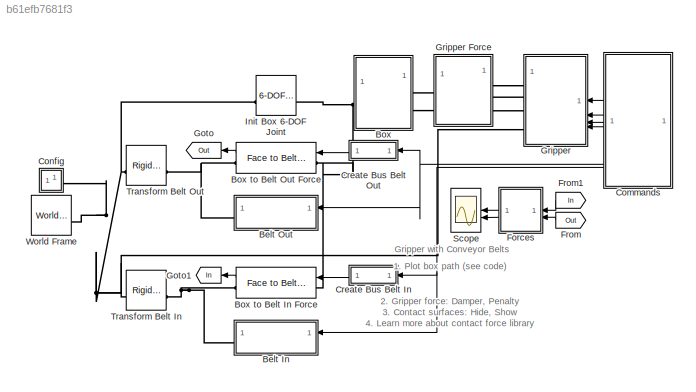
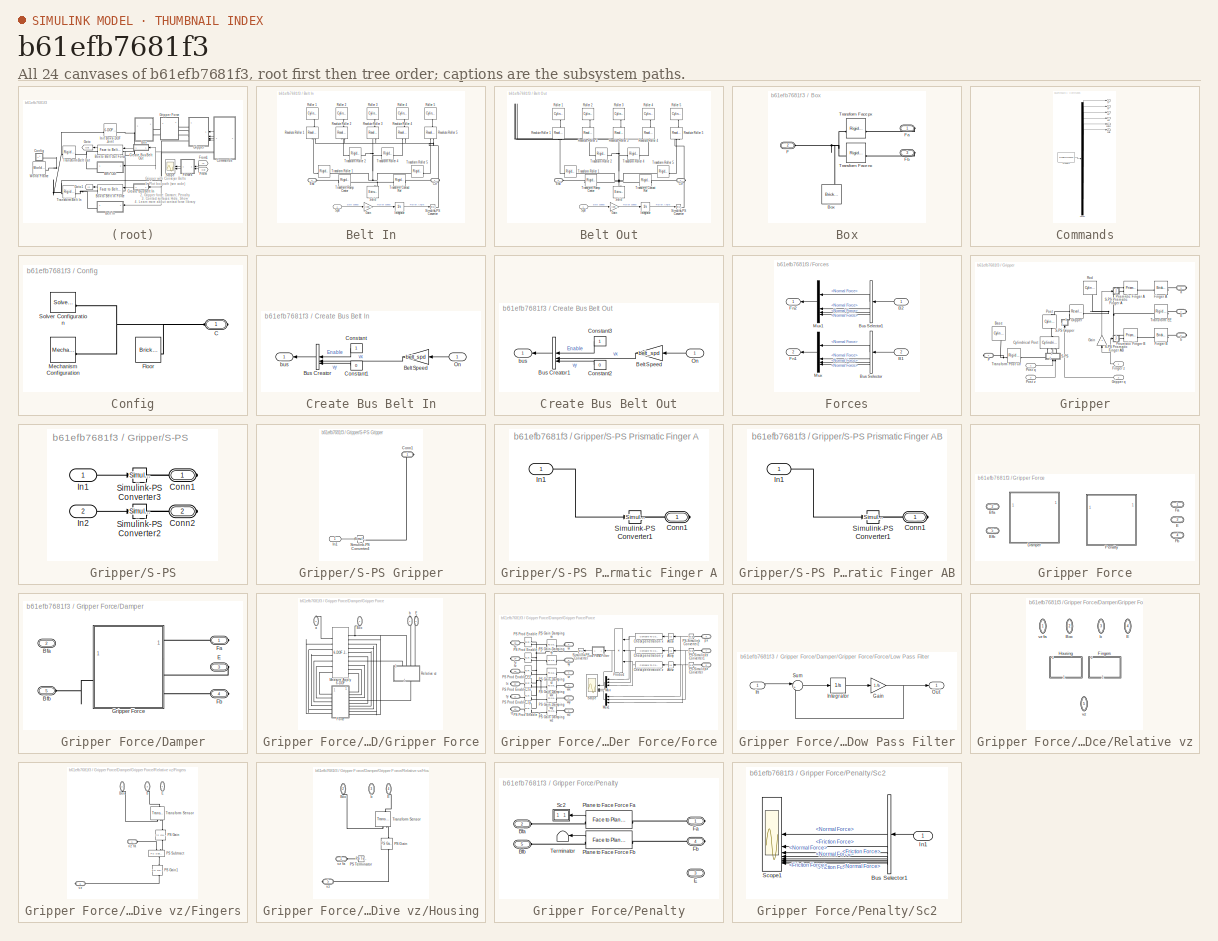
[diagram: thumbnail index - all 24 canvases of the model, root first then tree order]
MODEL slx_b61efb7681f3
KIND model
CONFIG AbsTol = 1e-4
CONFIG EnableMultiTasking = off
CONFIG FixedStep = auto
CONFIG MaxStep = 0.01
CONFIG MinStep = auto
CONFIG RelTol = 1e-3
CONFIG SampleTimeConstraint = Unconstrained
CONFIG SolverName = ode15s
CONFIG StartFcn = tic;
CONFIG StartTime = 0.0
CONFIG StopFcn = Elapsed_Sim_Time = toc;\ndisp(['Elapsed Sim Time = ' num2str(Elapsed_Sim_Time)]);\n
CONFIG StopTime = 30
WORKSPACE source: MATLAB code (in-file)
WORKSPACE floor_l = 1.0900  (= 1.09)
WORKSPACE floor_d = 0.0100  (= 0.01)
WORKSPACE belt_w = 0.1000  (= 0.1)
WORKSPACE belt_l = 0.4000  (= 0.4)
WORKSPACE belt_h = 0.0200  (= 0.02)
WORKSPACE belt_in_offset = [0    0.5050 0.0500]
WORKSPACE belt_out_offset = [-0.5050 0 0.0500]
WORKSPACE belt_spd = 0.1
WORKSPACE cube_d = 0.0600  (= 0.06)
WORKSPACE cube_con_rsph = 0.003
WORKSPACE cube_con_k = 1000000
WORKSPACE cube_con_b = 10000
WORKSPACE finger_con_x = 0.01
WORKSPACE finger_con_y = 0.01
WORKSPACE finger_con_z = 5e-4  (= 0.0005)
WORKSPACE finger_con_rsph = 5.0000e-04  (= 0.0005)
WORKSPACE finger_con_muk = 0.05
WORKSPACE finger_con_mus = 0.07
WORKSPACE finger_con_vth = 1e-3  (= 0.001)
WORKSPACE finger_l = 0.4
WORKSPACE finger_w = 0.03
WORKSPACE finger_t = 0.01
BLOCK [SubSystem] Belt In
  Tag = CustomStyle
BLOCK [PMIOPort] Belt In/Ctr
  Side = Right
BLOCK [PMIOPort] Belt In/End
  Port = 2
  Side = Left
BLOCK [Gain] Belt In/Gain
  Gain = 1/(belt_d/2*0.8)
BLOCK [Integrator] Belt In/Integrator
  NameLocation = top
BLOCK [Reference] Belt In/Revolute Roller 1  REF=sm_lib/Joints/Revolute Joint
  NameLocation = right
  SourceBlock = sm_lib/Joints/Revolute Joint
  SourceType = Revolute Joint
BLOCK [Reference] Belt In/Revolute Roller 2  REF=sm_lib/Joints/Revolute Joint
  NameLocation = right
  SourceBlock = sm_lib/Joints/Revolute Joint
  SourceType = Revolute Joint
BLOCK [Reference] Belt In/Revolute Roller 3  REF=sm_lib/Joints/Revolute Joint
  NameLocation = right
  SourceBlock = sm_lib/Joints/Revolute Joint
  SourceType = Revolute Joint
BLOCK [Reference] Belt In/Revolute Roller 4  REF=sm_lib/Joints/Revolute Joint
  NameLocation = right
  SourceBlock = sm_lib/Joints/Revolute Joint
  SourceType = Revolute Joint
BLOCK [Reference] Belt In/Revolute Roller 5  REF=sm_lib/Joints/Revolute Joint
  NameLocation = right
  SourceBlock = sm_lib/Joints/Revolute Joint
  SourceType = Revolute Joint
BLOCK [Reference] Belt In/Roller 1  REF=Parts_Lib/Cylinder
  NameLocation = right
  SourceBlock = Parts_Lib/Cylinder
  SourceType = Solid Cylinder with Markings
  Tag = CustomStyle
BLOCK [Reference] Belt In/Roller 2  REF=Parts_Lib/Cylinder
  NameLocation = right
  SourceBlock = Parts_Lib/Cylinder
  SourceType = Solid Cylinder with Markings
  Tag = CustomStyle
BLOCK [Reference] Belt In/Roller 3  REF=Parts_Lib/Cylinder
  NameLocation = right
  SourceBlock = Parts_Lib/Cylinder
  SourceType = Solid Cylinder with Markings
  Tag = CustomStyle
BLOCK [Reference] Belt In/Roller 4  REF=Parts_Lib/Cylinder
  NameLocation = right
  SourceBlock = Parts_Lib/Cylinder
  SourceType = Solid Cylinder with Markings
  Tag = CustomStyle
BLOCK [Reference] Belt In/Roller 5  REF=Parts_Lib/Cylinder
  NameLocation = right
  SourceBlock = Parts_Lib/Cylinder
  SourceType = Solid Cylinder with Markings
  Tag = CustomStyle
BLOCK [Reference] Belt In/Simulink-PS Converter  REF=nesl_utility/Simulink-PS
Converter
  SourceBlock = nesl_utility/Simulink-PS\nConverter
  SourceType = Simulink-PS\nConverter
BLOCK [Reference] Belt In/Solid  REF=sm_lib/Body Elements/Extruded Solid
  NameLocation = right
  SourceBlock = sm_lib/Body Elements/Extruded Solid
  SourceType = Extruded Solid
BLOCK [Inport] Belt In/Spd
BLOCK [Reference] Belt In/Transform Contact Ref  REF=sm_lib/Frames and
Transforms/Rigid
Transform
  SourceBlock = sm_lib/Frames and\nTransforms/Rigid\nTransform
  SourceType = Rigid\nTransform
BLOCK [Reference] Belt In/Transform Ramp Center  REF=sm_lib/Frames and
Transforms/Rigid
Transform
  SourceBlock = sm_lib/Frames and\nTransforms/Rigid\nTransform
  SourceType = Rigid\nTransform
BLOCK [Reference] Belt In/Transform Roller 1  REF=sm_lib/Frames and
Transforms/Rigid
Transform
  NameLocation = top
  SourceBlock = sm_lib/Frames and\nTransforms/Rigid\nTransform
  SourceType = Rigid\nTransform
BLOCK [Reference] Belt In/Transform Roller 2  REF=sm_lib/Frames and
Transforms/Rigid
Transform
  SourceBlock = sm_lib/Frames and\nTransforms/Rigid\nTransform
  SourceType = Rigid\nTransform
BLOCK [Reference] Belt In/Transform Roller 4  REF=sm_lib/Frames and
Transforms/Rigid
Transform
  SourceBlock = sm_lib/Frames and\nTransforms/Rigid\nTransform
  SourceType = Rigid\nTransform
BLOCK [Reference] Belt In/Transform Roller 5  REF=sm_lib/Frames and
Transforms/Rigid
Transform
  NameLocation = top
  SourceBlock = sm_lib/Frames and\nTransforms/Rigid\nTransform
  SourceType = Rigid\nTransform
BLOCK [SubSystem] Belt Out
  Tag = CustomStyle
BLOCK [PMIOPort] Belt Out/Ctr
  Side = Right
BLOCK [PMIOPort] Belt Out/End
  Port = 2
  Side = Left
BLOCK [Gain] Belt Out/Gain
  Gain = 1/(belt_d/2*0.8)
BLOCK [Integrator] Belt Out/Integrator
  NameLocation = top
BLOCK [Reference] Belt Out/Revolute Roller 1  REF=sm_lib/Joints/Revolute Joint
  NameLocation = right
  SourceBlock = sm_lib/Joints/Revolute Joint
  SourceType = Revolute Joint
BLOCK [Reference] Belt Out/Revolute Roller 2  REF=sm_lib/Joints/Revolute Joint
  NameLocation = right
  SourceBlock = sm_lib/Joints/Revolute Joint
  SourceType = Revolute Joint
BLOCK [Reference] Belt Out/Revolute Roller 3  REF=sm_lib/Joints/Revolute Joint
  NameLocation = right
  SourceBlock = sm_lib/Joints/Revolute Joint
  SourceType = Revolute Joint
BLOCK [Reference] Belt Out/Revolute Roller 4  REF=sm_lib/Joints/Revolute Joint
  NameLocation = right
  SourceBlock = sm_lib/Joints/Revolute Joint
  SourceType = Revolute Joint
BLOCK [Reference] Belt Out/Revolute Roller 5  REF=sm_lib/Joints/Revolute Joint
  NameLocation = right
  SourceBlock = sm_lib/Joints/Revolute Joint
  SourceType = Revolute Joint
BLOCK [Reference] Belt Out/Roller 1  REF=Parts_Lib/Cylinder
  NameLocation = right
  SourceBlock = Parts_Lib/Cylinder
  SourceType = Solid Cylinder with Markings
  Tag = CustomStyle
BLOCK [Reference] Belt Out/Roller 2  REF=Parts_Lib/Cylinder
  NameLocation = right
  SourceBlock = Parts_Lib/Cylinder
  SourceType = Solid Cylinder with Markings
  Tag = CustomStyle
BLOCK [Reference] Belt Out/Roller 3  REF=Parts_Lib/Cylinder
  NameLocation = right
  SourceBlock = Parts_Lib/Cylinder
  SourceType = Solid Cylinder with Markings
  Tag = CustomStyle
BLOCK [Reference] Belt Out/Roller 4  REF=Parts_Lib/Cylinder
  NameLocation = right
  SourceBlock = Parts_Lib/Cylinder
  SourceType = Solid Cylinder with Markings
  Tag = CustomStyle
BLOCK [Reference] Belt Out/Roller 5  REF=Parts_Lib/Cylinder
  NameLocation = right
  SourceBlock = Parts_Lib/Cylinder
  SourceType = Solid Cylinder with Markings
  Tag = CustomStyle
BLOCK [Reference] Belt Out/Simulink-PS Converter  REF=nesl_utility/Simulink-PS
Converter
  SourceBlock = nesl_utility/Simulink-PS\nConverter
  SourceType = Simulink-PS\nConverter
BLOCK [Reference] Belt Out/Solid  REF=sm_lib/Body Elements/Extruded Solid
  NameLocation = right
  SourceBlock = sm_lib/Body Elements/Extruded Solid
  SourceType = Extruded Solid
BLOCK [Inport] Belt Out/Spd
BLOCK [Reference] Belt Out/Transform Contact Ref  REF=sm_lib/Frames and
Transforms/Rigid
Transform
  SourceBlock = sm_lib/Frames and\nTransforms/Rigid\nTransform
  SourceType = Rigid\nTransform
BLOCK [Reference] Belt Out/Transform Ramp Center  REF=sm_lib/Frames and
Transforms/Rigid
Transform
  SourceBlock = sm_lib/Frames and\nTransforms/Rigid\nTransform
  SourceType = Rigid\nTransform
BLOCK [Reference] Belt Out/Transform Roller 1  REF=sm_lib/Frames and
Transforms/Rigid
Transform
  NameLocation = top
  SourceBlock = sm_lib/Frames and\nTransforms/Rigid\nTransform
  SourceType = Rigid\nTransform
BLOCK [Reference] Belt Out/Transform Roller 2  REF=sm_lib/Frames and
Transforms/Rigid
Transform
  SourceBlock = sm_lib/Frames and\nTransforms/Rigid\nTransform
  SourceType = Rigid\nTransform
BLOCK [Reference] Belt Out/Transform Roller 4  REF=sm_lib/Frames and
Transforms/Rigid
Transform
  SourceBlock = sm_lib/Frames and\nTransforms/Rigid\nTransform
  SourceType = Rigid\nTransform
BLOCK [Reference] Belt Out/Transform Roller 5  REF=sm_lib/Frames and
Transforms/Rigid
Transform
  NameLocation = top
  SourceBlock = sm_lib/Frames and\nTransforms/Rigid\nTransform
  SourceType = Rigid\nTransform
BLOCK [SubSystem] Box
  NameLocation = top
  Tag = CustomStyle
BLOCK [Reference] Box to Belt In Force  REF=Contact_Forces_Lib/3D/Composite
Forces/Face to Belt Faces Force
  SourceBlock = Contact_Forces_Lib/3D/Composite\nForces/Face to Belt Faces Force
  SourceProductName = Simscape Multibody Contact Forces Library
  SourceType = Face to Belt Faces Force
BLOCK [Reference] Box to Belt Out Force  REF=Contact_Forces_Lib/3D/Composite
Forces/Face to Belt Faces Force
  SourceBlock = Contact_Forces_Lib/3D/Composite\nForces/Face to Belt Faces Force
  SourceProductName = Simscape Multibody Contact Forces Library
  SourceType = Face to Belt Faces Force
BLOCK [Reference] Box/Box  REF=sm_lib/Body Elements/Brick Solid
  NameLocation = right
  SourceBlock = sm_lib/Body Elements/Brick Solid
  SourceType = Brick Solid
BLOCK [PMIOPort] Box/F
  Port = 2
  Side = Left
BLOCK [PMIOPort] Box/Fa
  Side = Right
BLOCK [PMIOPort] Box/Fb
  Port = 3
  Side = Right
BLOCK [Reference] Box/Transform Face nx  REF=sm_lib/Frames and
Transforms/Rigid
Transform
  SourceBlock = sm_lib/Frames and\nTransforms/Rigid\nTransform
  SourceType = Rigid\nTransform
BLOCK [Reference] Box/Transform Face px  REF=sm_lib/Frames and
Transforms/Rigid
Transform
  NameLocation = top
  SourceBlock = sm_lib/Frames and\nTransforms/Rigid\nTransform
  SourceType = Rigid\nTransform
BLOCK [SubSystem] Commands
  ClipboardFcn = sigbuilder_block('clipboard');
  CloseFcn = sigbuilder_block('close');
  ContinueFcn = sigbuilder_block('continue');
  CopyFcn = sigbuilder_block('copy');
  DeleteFcn = sigbuilder_block('delete');
  LoadFcn = sigbuilder_block('load');
  MaskHideContents = on
  ModelCloseFcn = sigbuilder_block('modelClose');
  NameChangeFcn = sigbuilder_block('namechange');
  NameLocation = top
  OpenFcn = sigbuilder_block('open',[18 99 550.8 479.4 ]);
  PauseFcn = sigbuilder_block('pause');
  PreSaveFcn = sigbuilder_block('preSave');
  StartFcn = sigbuilder_block('start');
  StopFcn = sigbuilder_block('stop');
  Tag = STV Subsys
BLOCK [Outport] Commands/Belt In
  Port = 6
  Tag = STV Outport
  VectorParamsAs1DForOutWhenUnconnected = off
BLOCK [Outport] Commands/Belt Out
  Port = 5
  Tag = STV Outport
  VectorParamsAs1DForOutWhenUnconnected = off
BLOCK [Demux] Commands/Demux
  DisplayOption = none
  Outputs = 6
  Tag = STV Demux
BLOCK [FromWorkspace] Commands/FromWs
  Tag = STV FromWs
  VariableName = tuvar
BLOCK [Outport] Commands/qF
  Port = 2
  Tag = STV Outport
  VectorParamsAs1DForOutWhenUnconnected = off
BLOCK [Outport] Commands/qQ
  Port = 4
  Tag = STV Outport
  VectorParamsAs1DForOutWhenUnconnected = off
BLOCK [Outport] Commands/xF
  Tag = STV Outport
  VectorParamsAs1DForOutWhenUnconnected = off
BLOCK [Outport] Commands/zP
  Port = 3
  Tag = STV Outport
  VectorParamsAs1DForOutWhenUnconnected = off
BLOCK [SubSystem] Config
  NameLocation = top
BLOCK [PMIOPort] Config/C
  NameLocation = top
  Side = Right
BLOCK [Reference] Config/Floor  REF=sm_lib/Body Elements/Brick Solid
  Commented = on
  SourceBlock = sm_lib/Body Elements/Brick Solid
  SourceType = Brick Solid
BLOCK [Reference] Config/Mechanism Configuration  REF=sm_lib/Utilities/Mechanism
Configuration
  SourceBlock = sm_lib/Utilities/Mechanism\nConfiguration
  SourceType = Mechanism\nConfiguration
BLOCK [Reference] Config/Solver Configuration  REF=nesl_utility/Solver
Configuration
  NameLocation = top
  SourceBlock = nesl_utility/Solver\nConfiguration
  SourceType = Solver\nConfiguration
BLOCK [SubSystem] Create Bus Belt In
BLOCK [Gain] Create Bus Belt In/Belt Speed
  Gain = belt_spd
BLOCK [BusCreator] Create Bus Belt In/Bus Creator
  DisplayOption = bar
  InheritFromInputs = on
  Inputs = 3
BLOCK [Constant] Create Bus Belt In/Constant
BLOCK [Constant] Create Bus Belt In/Constant1
  Value = 0
BLOCK [Inport] Create Bus Belt In/On
BLOCK [Outport] Create Bus Belt In/bus
  VectorParamsAs1DForOutWhenUnconnected = off
BLOCK [SubSystem] Create Bus Belt Out
BLOCK [Gain] Create Bus Belt Out/Belt Speed
  Gain = belt_spd
BLOCK [BusCreator] Create Bus Belt Out/Bus Creator1
  DisplayOption = bar
  InheritFromInputs = on
  Inputs = 3
BLOCK [Constant] Create Bus Belt Out/Constant2
  Value = 0
BLOCK [Constant] Create Bus Belt Out/Constant3
BLOCK [Inport] Create Bus Belt Out/On
BLOCK [Outport] Create Bus Belt Out/bus
  VectorParamsAs1DForOutWhenUnconnected = off
BLOCK [SubSystem] Forces
BLOCK [Inport] Forces/B1
  Port = 2
BLOCK [Inport] Forces/B2
BLOCK [BusSelector] Forces/Bus Selector
  OutputSignals = fz1.Normal Force,fz2.Normal Force,fz3.Normal Force,fz4.Normal Force
BLOCK [BusSelector] Forces/Bus Selector1
  OutputSignals = fz1.Normal Force,fz2.Normal Force,fz3.Normal Force,fz4.Normal Force
BLOCK [Outport] Forces/Fn1
  Port = 2
  VectorParamsAs1DForOutWhenUnconnected = off
BLOCK [Outport] Forces/Fn2
  VectorParamsAs1DForOutWhenUnconnected = off
BLOCK [Mux] Forces/Mux
  DisplayOption = bar
BLOCK [Mux] Forces/Mux1
  DisplayOption = bar
BLOCK [From] From
  GotoTag = Out
BLOCK [From] From1
  GotoTag = In
BLOCK [Goto] Goto
  GotoTag = Out
BLOCK [Goto] Goto1
  GotoTag = In
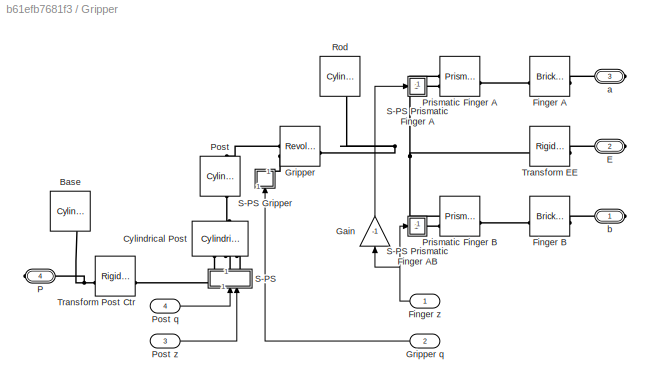
BLOCK [SubSystem] Gripper
  NameLocation = top
BLOCK [SubSystem] Gripper Force
  AttributesFormatString = %<ActiveVariant>
  LabelModeActiveChoice = Damper
  NameLocation = top
  Variant = on
  VariantControlMode = label
BLOCK [PMIOPort] Gripper Force/Bfa
  Port = 2
  Side = Left
BLOCK [PMIOPort] Gripper Force/Bfb
  Port = 5
  Side = Left
BLOCK [SubSystem] Gripper Force/Damper
  VariantControl = Damper
BLOCK [PMIOPort] Gripper Force/Damper/Bfa
  Port = 2
  Side = Left
BLOCK [PMIOPort] Gripper Force/Damper/Bfb
  Port = 5
  Side = Left
BLOCK [PMIOPort] Gripper Force/Damper/E
  Port = 3
  Side = Right
BLOCK [PMIOPort] Gripper Force/Damper/Fa
  Side = Right
BLOCK [PMIOPort] Gripper Force/Damper/Fb
  Port = 4
  Side = Right
BLOCK [SubSystem] Gripper Force/Damper/Gripper Force
BLOCK [PMIOPort] Gripper Force/Damper/Gripper Force/Box
  NameLocation = right
  Port = 4
  Side = Left
BLOCK [PMIOPort] Gripper Force/Damper/Gripper Force/E
  NameLocation = right
  Port = 2
  Side = Right
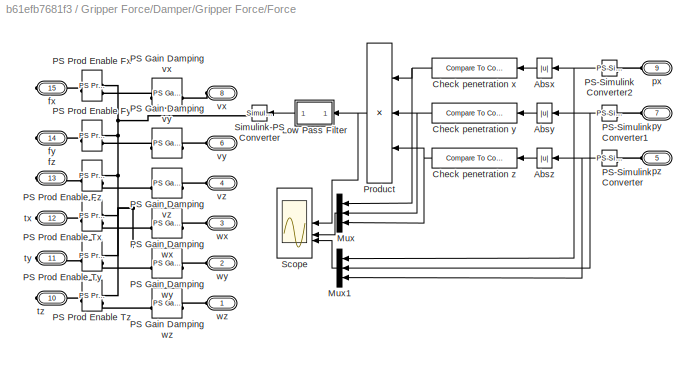
BLOCK [SubSystem] Gripper Force/Damper/Gripper Force/Force
BLOCK [Abs] Gripper Force/Damper/Gripper Force/Force/Absx
  SaturateOnIntegerOverflow = off
  ZeroCross = off
BLOCK [Abs] Gripper Force/Damper/Gripper Force/Force/Absy
  SaturateOnIntegerOverflow = off
  ZeroCross = off
BLOCK [Abs] Gripper Force/Damper/Gripper Force/Force/Absz
  SaturateOnIntegerOverflow = off
  ZeroCross = off
BLOCK [Reference] Gripper Force/Damper/Gripper Force/Force/Check penetration x  REF=simulink/Logic and Bit
Operations/Compare
To Constant
  SourceBlock = simulink/Logic and Bit\nOperations/Compare\nTo Constant
  SourceType = Compare To Constant
BLOCK [Reference] Gripper Force/Damper/Gripper Force/Force/Check penetration y  REF=simulink/Logic and Bit
Operations/Compare
To Constant
  SourceBlock = simulink/Logic and Bit\nOperations/Compare\nTo Constant
  SourceType = Compare To Constant
BLOCK [Reference] Gripper Force/Damper/Gripper Force/Force/Check penetration z  REF=simulink/Logic and Bit
Operations/Compare
To Constant
  SourceBlock = simulink/Logic and Bit\nOperations/Compare\nTo Constant
  SourceType = Compare To Constant
BLOCK [SubSystem] Gripper Force/Damper/Gripper Force/Force/Low Pass Filter
BLOCK [Gain] Gripper Force/Damper/Gripper Force/Force/Low Pass Filter/Gain
  Gain = 1./b
BLOCK [Inport] Gripper Force/Damper/Gripper Force/Force/Low Pass Filter/In
BLOCK [Integrator] Gripper Force/Damper/Gripper Force/Force/Low Pass Filter/Integrator
  InitialCondition = x_initial.*b
BLOCK [Outport] Gripper Force/Damper/Gripper Force/Force/Low Pass Filter/Out
  VectorParamsAs1DForOutWhenUnconnected = off
BLOCK [Sum] Gripper Force/Damper/Gripper Force/Force/Low Pass Filter/Sum
  InputSameDT = on
  Inputs = |+-
  OutDataTypeStr = Inherit: Same as first input
  SaturateOnIntegerOverflow = on
BLOCK [Mux] Gripper Force/Damper/Gripper Force/Force/Mux
  DisplayOption = bar
  Inputs = 3
BLOCK [Mux] Gripper Force/Damper/Gripper Force/Force/Mux1
  DisplayOption = bar
  Inputs = 3
BLOCK [Reference] Gripper Force/Damper/Gripper Force/Force/PS Gain Damping vx  REF=fl_lib/Physical Signals/Functions/PS Gain
  NameLocation = top
  SourceBlock = fl_lib/Physical Signals/Functions/PS Gain
  SourceType = PS Gain
BLOCK [Reference] Gripper Force/Damper/Gripper Force/Force/PS Gain Damping vy  REF=fl_lib/Physical Signals/Functions/PS Gain
  SourceBlock = fl_lib/Physical Signals/Functions/PS Gain
  SourceType = PS Gain
BLOCK [Reference] Gripper Force/Damper/Gripper Force/Force/PS Gain Damping vz  REF=fl_lib/Physical Signals/Functions/PS Gain
  SourceBlock = fl_lib/Physical Signals/Functions/PS Gain
  SourceType = PS Gain
BLOCK [Reference] Gripper Force/Damper/Gripper Force/Force/PS Gain Damping wx  REF=fl_lib/Physical Signals/Functions/PS Gain
  SourceBlock = fl_lib/Physical Signals/Functions/PS Gain
  SourceType = PS Gain
BLOCK [Reference] Gripper Force/Damper/Gripper Force/Force/PS Gain Damping wy  REF=fl_lib/Physical Signals/Functions/PS Gain
  SourceBlock = fl_lib/Physical Signals/Functions/PS Gain
  SourceType = PS Gain
BLOCK [Reference] Gripper Force/Damper/Gripper Force/Force/PS Gain Damping wz  REF=fl_lib/Physical Signals/Functions/PS Gain
  SourceBlock = fl_lib/Physical Signals/Functions/PS Gain
  SourceType = PS Gain
BLOCK [Reference] Gripper Force/Damper/Gripper Force/Force/PS Prod Enable Fx  REF=fl_lib/Physical Signals/Functions/PS Product
  NameLocation = top
  SourceBlock = fl_lib/Physical Signals/Functions/PS Product
  SourceType = PS Product
BLOCK [Reference] Gripper Force/Damper/Gripper Force/Force/PS Prod Enable Fy  REF=fl_lib/Physical Signals/Functions/PS Product
  SourceBlock = fl_lib/Physical Signals/Functions/PS Product
  SourceType = PS Product
BLOCK [Reference] Gripper Force/Damper/Gripper Force/Force/PS Prod Enable Fz  REF=fl_lib/Physical Signals/Functions/PS Product
  SourceBlock = fl_lib/Physical Signals/Functions/PS Product
  SourceType = PS Product
BLOCK [Reference] Gripper Force/Damper/Gripper Force/Force/PS Prod Enable Tx  REF=fl_lib/Physical Signals/Functions/PS Product
  SourceBlock = fl_lib/Physical Signals/Functions/PS Product
  SourceType = PS Product
BLOCK [Reference] Gripper Force/Damper/Gripper Force/Force/PS Prod Enable Ty  REF=fl_lib/Physical Signals/Functions/PS Product
  SourceBlock = fl_lib/Physical Signals/Functions/PS Product
  SourceType = PS Product
BLOCK [Reference] Gripper Force/Damper/Gripper Force/Force/PS Prod Enable Tz  REF=fl_lib/Physical Signals/Functions/PS Product
  SourceBlock = fl_lib/Physical Signals/Functions/PS Product
  SourceType = PS Product
BLOCK [Reference] Gripper Force/Damper/Gripper Force/Force/PS-Simulink Converter  REF=nesl_utility/PS-Simulink
Converter
  SourceBlock = nesl_utility/PS-Simulink\nConverter
  SourceType = PS-Simulink\nConverter
BLOCK [Reference] Gripper Force/Damper/Gripper Force/Force/PS-Simulink Converter1  REF=nesl_utility/PS-Simulink
Converter
  SourceBlock = nesl_utility/PS-Simulink\nConverter
  SourceType = PS-Simulink\nConverter
BLOCK [Reference] Gripper Force/Damper/Gripper Force/Force/PS-Simulink Converter2  REF=nesl_utility/PS-Simulink
Converter
  SourceBlock = nesl_utility/PS-Simulink\nConverter
  SourceType = PS-Simulink\nConverter
BLOCK [Product] Gripper Force/Damper/Gripper Force/Force/Product
  Inputs = 3
  OutDataTypeStr = double
BLOCK [Scope] Gripper Force/Damper/Gripper Force/Force/Scope
  Floating = off
  NumInputPorts = 3
  ScopeSpecificationString = Simulink.scopes.TimeScopeBlockCfg('CurrentConfiguration', extmgr.ConfigurationSet(extmgr.Configuration('Core','General UI',true),extmgr.Configuration('Core','Source UI',true),extmgr.Configuration('Sources','WiredSimulink',true,'DataLoggingVariableName','ScopeData1'),extmgr.Configuration('Visuals','Time Domain',true,'SerializedDisplays',{struct('MinYLimReal','-0.125','MaxYLimReal','1.125','YLabelRe...<+2714ch>
BLOCK [Reference] Gripper Force/Damper/Gripper Force/Force/Simulink-PS Converter  REF=nesl_utility/Simulink-PS
Converter
  SourceBlock = nesl_utility/Simulink-PS\nConverter
  SourceType = Simulink-PS\nConverter
BLOCK [PMIOPort] Gripper Force/Damper/Gripper Force/Force/fx
  Port = 15
  Side = Right
BLOCK [PMIOPort] Gripper Force/Damper/Gripper Force/Force/fy
  Port = 14
  Side = Right
BLOCK [PMIOPort] Gripper Force/Damper/Gripper Force/Force/fz
  Port = 13
  Side = Right
BLOCK [PMIOPort] Gripper Force/Damper/Gripper Force/Force/px
  Port = 9
  Side = Left
BLOCK [PMIOPort] Gripper Force/Damper/Gripper Force/Force/py
  Port = 7
  Side = Left
BLOCK [PMIOPort] Gripper Force/Damper/Gripper Force/Force/pz
  Port = 5
  Side = Left
BLOCK [PMIOPort] Gripper Force/Damper/Gripper Force/Force/tx
  Port = 12
  Side = Right
BLOCK [PMIOPort] Gripper Force/Damper/Gripper Force/Force/ty
  Port = 11
  Side = Right
BLOCK [PMIOPort] Gripper Force/Damper/Gripper Force/Force/tz
  Port = 10
  Side = Right
BLOCK [PMIOPort] Gripper Force/Damper/Gripper Force/Force/vx
  NameLocation = top
  Port = 8
  Side = Left
BLOCK [PMIOPort] Gripper Force/Damper/Gripper Force/Force/vy
  NameLocation = top
  Port = 6
  Side = Left
BLOCK [PMIOPort] Gripper Force/Damper/Gripper Force/Force/vz
  NameLocation = top
  Port = 4
  Side = Left
BLOCK [PMIOPort] Gripper Force/Damper/Gripper Force/Force/wx
  NameLocation = top
  Port = 3
  Side = Left
BLOCK [PMIOPort] Gripper Force/Damper/Gripper Force/Force/wy
  NameLocation = top
  Port = 2
  Side = Left
BLOCK [PMIOPort] Gripper Force/Damper/Gripper Force/Force/wz
  NameLocation = top
  Side = Left
BLOCK [Reference] Gripper Force/Damper/Gripper Force/Measure Apply 6-DOF  REF=sm_lib/Joints/6-DOF Joint
  SourceBlock = sm_lib/Joints/6-DOF Joint
  SourceType = 6-DOF Joint
BLOCK [SubSystem] Gripper Force/Damper/Gripper Force/Relative vz
  AttributesFormatString = %<ActiveVariant>
  LabelModeActiveChoice = Fingers
  NameLocation = right
  Variant = on
  VariantControlMode = label
BLOCK [PMIOPort] Gripper Force/Damper/Gripper Force/Relative vz/Box
  NameLocation = left
  Port = 2
  Side = Left
BLOCK [PMIOPort] Gripper Force/Damper/Gripper Force/Relative vz/E
  NameLocation = left
  Port = 4
  Side = Left
BLOCK [SubSystem] Gripper Force/Damper/Gripper Force/Relative vz/Fingers
  NameLocation = right
  VariantControl = Fingers
BLOCK [PMIOPort] Gripper Force/Damper/Gripper Force/Relative vz/Fingers/Box
  NameLocation = left
  Port = 2
  Side = Left
BLOCK [PMIOPort] Gripper Force/Damper/Gripper Force/Relative vz/Fingers/E
  NameLocation = right
  Port = 4
  Side = Left
BLOCK [Reference] Gripper Force/Damper/Gripper Force/Relative vz/Fingers/PS Gain  REF=fl_lib/Physical Signals/Functions/PS Gain
  NameLocation = right
  SourceBlock = fl_lib/Physical Signals/Functions/PS Gain
  SourceType = PS Gain
BLOCK [Reference] Gripper Force/Damper/Gripper Force/Relative vz/Fingers/PS Gain1  REF=fl_lib/Physical Signals/Functions/PS Gain
  NameLocation = right
  SourceBlock = fl_lib/Physical Signals/Functions/PS Gain
  SourceType = PS Gain
BLOCK [Reference] Gripper Force/Damper/Gripper Force/Relative vz/Fingers/PS Subtract  REF=fl_lib/Physical Signals/Functions/PS Subtract
  NameLocation = right
  SourceBlock = fl_lib/Physical Signals/Functions/PS Subtract
  SourceType = PS Subtract
BLOCK [Reference] Gripper Force/Damper/Gripper Force/Relative vz/Fingers/Transform Sensor  REF=sm_lib/Frames and
Transforms/Transform
Sensor
  NameLocation = right
  SourceBlock = sm_lib/Frames and\nTransforms/Transform\nSensor
  SourceType = Transform\nSensor
BLOCK [PMIOPort] Gripper Force/Damper/Gripper Force/Relative vz/Fingers/b
  NameLocation = left
  Port = 3
  Side = Left
BLOCK [PMIOPort] Gripper Force/Damper/Gripper Force/Relative vz/Fingers/vz
  Port = 5
  Side = Right
BLOCK [PMIOPort] Gripper Force/Damper/Gripper Force/Relative vz/Fingers/vz fa
  Side = Left
BLOCK [SubSystem] Gripper Force/Damper/Gripper Force/Relative vz/Housing
  NameLocation = left
  VariantControl = Housing
BLOCK [PMIOPort] Gripper Force/Damper/Gripper Force/Relative vz/Housing/Box
  NameLocation = left
  Port = 2
  Side = Left
BLOCK [PMIOPort] Gripper Force/Damper/Gripper Force/Relative vz/Housing/E
  NameLocation = right
  Port = 4
  Side = Left
BLOCK [Reference] Gripper Force/Damper/Gripper Force/Relative vz/Housing/PS Gain  REF=fl_ps_legacy_lib/Legacy Physical
Signals/Functions/PS Gain
  NameLocation = right
  SourceBlock = fl_ps_legacy_lib/Legacy Physical\nSignals/Functions/PS Gain
  SourceType = PS Gain
BLOCK [Reference] Gripper Force/Damper/Gripper Force/Relative vz/Housing/PS Terminator  REF=fl_lib/Physical Signals/Sinks/PS Terminator
  SourceBlock = fl_lib/Physical Signals/Sinks/PS Terminator
  SourceType = PS Terminator
BLOCK [Reference] Gripper Force/Damper/Gripper Force/Relative vz/Housing/Transform Sensor  REF=sm_lib/Frames and
Transforms/Transform
Sensor
  NameLocation = right
  SourceBlock = sm_lib/Frames and\nTransforms/Transform\nSensor
  SourceType = Transform\nSensor
BLOCK [PMIOPort] Gripper Force/Damper/Gripper Force/Relative vz/Housing/b
  NameLocation = left
  Port = 3
  Side = Left
BLOCK [PMIOPort] Gripper Force/Damper/Gripper Force/Relative vz/Housing/vz
  Port = 5
  Side = Right
BLOCK [PMIOPort] Gripper Force/Damper/Gripper Force/Relative vz/Housing/vz fa
  Side = Left
BLOCK [PMIOPort] Gripper Force/Damper/Gripper Force/Relative vz/b
  NameLocation = left
  Port = 3
  Side = Left
BLOCK [PMIOPort] Gripper Force/Damper/Gripper Force/Relative vz/vz
  NameLocation = left
  Port = 5
  Side = Right
BLOCK [PMIOPort] Gripper Force/Damper/Gripper Force/Relative vz/vz fa
  NameLocation = left
  Side = Left
BLOCK [PMIOPort] Gripper Force/Damper/Gripper Force/a
  NameLocation = right
  Port = 3
  Side = Right
BLOCK [PMIOPort] Gripper Force/Damper/Gripper Force/b
  NameLocation = left
  Side = Right
BLOCK [PMIOPort] Gripper Force/E
  Port = 3
  Side = Right
BLOCK [PMIOPort] Gripper Force/Fa
  Side = Right
BLOCK [PMIOPort] Gripper Force/Fb
  Port = 4
  Side = Right
BLOCK [SubSystem] Gripper Force/Penalty
  VariantControl = Penalty
BLOCK [PMIOPort] Gripper Force/Penalty/Bfa
  Port = 2
  Side = Left
BLOCK [PMIOPort] Gripper Force/Penalty/Bfb
  Port = 5
  Side = Left
BLOCK [PMIOPort] Gripper Force/Penalty/E
  Port = 3
  Side = Right
BLOCK [PMIOPort] Gripper Force/Penalty/Fa
  Side = Right
BLOCK [PMIOPort] Gripper Force/Penalty/Fb
  Port = 4
  Side = Right
BLOCK [Reference] Gripper Force/Penalty/Plane to Face Force Fa  REF=Contact_Forces_Lib/3D/Composite
Forces/Face to Plane Force
  NameLocation = top
  SourceBlock = Contact_Forces_Lib/3D/Composite\nForces/Face to Plane Force
  SourceProductName = Simscape Multibody Contact Forces Library
  SourceType = Face to Plane Force
BLOCK [Reference] Gripper Force/Penalty/Plane to Face Force Fb  REF=Contact_Forces_Lib/3D/Composite
Forces/Face to Plane Force
  SourceBlock = Contact_Forces_Lib/3D/Composite\nForces/Face to Plane Force
  SourceProductName = Simscape Multibody Contact Forces Library
  SourceType = Face to Plane Force
BLOCK [SubSystem] Gripper Force/Penalty/Sc2
  NameLocation = top
BLOCK [BusSelector] Gripper Force/Penalty/Sc2/Bus Selector1
  OutputSignals = fz1.Normal Force,fz1.Friction Force,fz2.Normal Force,fz2.Friction Force,fz3.Normal Force,fz3.Friction Force,fz4.Normal Force,fz4.Friction Force
BLOCK [Inport] Gripper Force/Penalty/Sc2/In1
BLOCK [Scope] Gripper Force/Penalty/Sc2/Scope1
  Floating = off
  NumInputPorts = 8
  ScopeSpecificationString = Simulink.scopes.TimeScopeBlockCfg('CurrentConfiguration', extmgr.ConfigurationSet(extmgr.Configuration('Core','General UI',true),extmgr.Configuration('Core','Source UI',true),extmgr.Configuration('Sources','WiredSimulink',true,'DataLoggingVariableName','ScopeData2'),extmgr.Configuration('Visuals','Time Domain',true,'SerializedDisplays',{struct('MinYLimReal','-312.6734','MaxYLimReal','2814.06064','...<+6529ch>
BLOCK [Terminator] Gripper Force/Penalty/Terminator
  NameLocation = top
BLOCK [Reference] Gripper/Base  REF=sm_lib/Body Elements/Cylindrical Solid
  NameLocation = right
  SourceBlock = sm_lib/Body Elements/Cylindrical Solid
  SourceType = Cylindrical Solid
BLOCK [Reference] Gripper/Cylindrical Post  REF=sm_lib/Joints/Cylindrical
Joint
  NameLocation = left
  SourceBlock = sm_lib/Joints/Cylindrical\nJoint
  SourceType = Cylindrical\nJoint
BLOCK [PMIOPort] Gripper/E
  NameLocation = top
  Port = 2
  Side = Right
BLOCK [Reference] Gripper/Finger A  REF=sm_lib/Body Elements/Brick Solid
  SourceBlock = sm_lib/Body Elements/Brick Solid
  SourceType = Brick Solid
BLOCK [Reference] Gripper/Finger B  REF=sm_lib/Body Elements/Brick Solid
  SourceBlock = sm_lib/Body Elements/Brick Solid
  SourceType = Brick Solid
BLOCK [Inport] Gripper/Finger z
BLOCK [Gain] Gripper/Gain
  Gain = -1
  NameLocation = right
BLOCK [Reference] Gripper/Gripper  REF=sm_lib/Joints/Revolute Joint
  SourceBlock = sm_lib/Joints/Revolute Joint
  SourceType = Revolute Joint
BLOCK [Inport] Gripper/Gripper q
  Port = 2
BLOCK [PMIOPort] Gripper/P
  NameLocation = top
  Port = 4
  Side = Right
BLOCK [Reference] Gripper/Post  REF=sm_lib/Body Elements/Cylindrical Solid
  NameLocation = left
  SourceBlock = sm_lib/Body Elements/Cylindrical Solid
  SourceType = Cylindrical Solid
BLOCK [Inport] Gripper/Post  q
  Port = 4
BLOCK [Inport] Gripper/Post z
  Port = 3
BLOCK [Reference] Gripper/Prismatic Finger A  REF=sm_lib/Joints/Prismatic
Joint
  SourceBlock = sm_lib/Joints/Prismatic\nJoint
  SourceType = Prismatic\nJoint
BLOCK [Reference] Gripper/Prismatic Finger B  REF=sm_lib/Joints/Prismatic
Joint
  SourceBlock = sm_lib/Joints/Prismatic\nJoint
  SourceType = Prismatic\nJoint
BLOCK [Reference] Gripper/Rod  REF=sm_lib/Body Elements/Cylindrical Solid
  NameLocation = left
  SourceBlock = sm_lib/Body Elements/Cylindrical Solid
  SourceType = Cylindrical Solid
BLOCK [SubSystem] Gripper/S-PS
  NameLocation = right
BLOCK [SubSystem] Gripper/S-PS Gripper
  NameLocation = right
BLOCK [PMIOPort] Gripper/S-PS Gripper/Conn1
  Side = Right
BLOCK [Inport] Gripper/S-PS Gripper/In1
BLOCK [Reference] Gripper/S-PS Gripper/Simulink-PS Converter4  REF=nesl_utility/Simulink-PS
Converter
  SourceBlock = nesl_utility/Simulink-PS\nConverter
  SourceType = Simulink-PS\nConverter
BLOCK [SubSystem] Gripper/S-PS Prismatic Finger A
BLOCK [PMIOPort] Gripper/S-PS Prismatic Finger A/Conn1
  Side = Right
BLOCK [Inport] Gripper/S-PS Prismatic Finger A/In1
BLOCK [Reference] Gripper/S-PS Prismatic Finger A/Simulink-PS Converter1  REF=nesl_utility/Simulink-PS
Converter
  SourceBlock = nesl_utility/Simulink-PS\nConverter
  SourceType = Simulink-PS\nConverter
BLOCK [SubSystem] Gripper/S-PS Prismatic Finger AB
BLOCK [PMIOPort] Gripper/S-PS Prismatic Finger AB/Conn1
  Side = Right
BLOCK [Inport] Gripper/S-PS Prismatic Finger AB/In1
BLOCK [Reference] Gripper/S-PS Prismatic Finger AB/Simulink-PS Converter1  REF=nesl_utility/Simulink-PS
Converter
  SourceBlock = nesl_utility/Simulink-PS\nConverter
  SourceType = Simulink-PS\nConverter
BLOCK [PMIOPort] Gripper/S-PS/Conn1
  Side = Right
BLOCK [PMIOPort] Gripper/S-PS/Conn2
  Port = 2
  Side = Right
BLOCK [Inport] Gripper/S-PS/In1
BLOCK [Inport] Gripper/S-PS/In2
  Port = 2
BLOCK [Reference] Gripper/S-PS/Simulink-PS Converter2  REF=nesl_utility/Simulink-PS
Converter
  SourceBlock = nesl_utility/Simulink-PS\nConverter
  SourceType = Simulink-PS\nConverter
BLOCK [Reference] Gripper/S-PS/Simulink-PS Converter3  REF=nesl_utility/Simulink-PS
Converter
  SourceBlock = nesl_utility/Simulink-PS\nConverter
  SourceType = Simulink-PS\nConverter
BLOCK [Reference] Gripper/Transform EE  REF=sm_lib/Frames and
Transforms/Rigid
Transform
  SourceBlock = sm_lib/Frames and\nTransforms/Rigid\nTransform
  SourceType = Rigid\nTransform
BLOCK [Reference] Gripper/Transform Post Ctr  REF=sm_lib/Frames and
Transforms/Rigid
Transform
  SourceBlock = sm_lib/Frames and\nTransforms/Rigid\nTransform
  SourceType = Rigid\nTransform
BLOCK [PMIOPort] Gripper/a
  NameLocation = top
  Port = 3
  Side = Right
BLOCK [PMIOPort] Gripper/b
  NameLocation = top
  Side = Right
BLOCK [Reference] Init Box 6-DOF Joint  REF=sm_lib/Joints/6-DOF Joint
  SourceBlock = sm_lib/Joints/6-DOF Joint
  SourceType = 6-DOF Joint
BLOCK [Scope] Scope
  Floating = off
  NumInputPorts = 2
  ScopeSpecificationString = Simulink.scopes.TimeScopeBlockCfg('CurrentConfiguration', extmgr.ConfigurationSet(extmgr.Configuration('Core','General UI',true),extmgr.Configuration('Core','Source UI',true),extmgr.Configuration('Sources','WiredSimulink',true,'DataLoggingVariableName','ScopeData1'),extmgr.Configuration('Visuals','Time Domain',true,'SerializedDisplays',{struct('MinYLimReal','-0.5','MaxYLimReal','1','YLabelReal',''...<+1998ch>
BLOCK [Reference] Transform Belt In  REF=sm_lib/Frames and
Transforms/Rigid
Transform
  SourceBlock = sm_lib/Frames and\nTransforms/Rigid\nTransform
  SourceType = Rigid\nTransform
BLOCK [Reference] Transform Belt Out  REF=sm_lib/Frames and
Transforms/Rigid
Transform
  SourceBlock = sm_lib/Frames and\nTransforms/Rigid\nTransform
  SourceType = Rigid\nTransform
BLOCK [Reference] World Frame  REF=sm_lib/Frames and
Transforms/World Frame
  SourceBlock = sm_lib/Frames and\nTransforms/World Frame
  SourceType = World Frame
ANNOTATION (root): 1. Plot box path ( see code ) 2. Gripper force: Damper , Penalty 3. Contact surfaces: Hide , Show 4. Learn more about contact force library
ANNOTATION (root): Gripper with Conveyor Belts
LINE Belt In/Gain:1 -> Belt In/Integrator:1
LINE Belt In/Integrator:1 -> Belt In/Simulink-PS Converter:1
LINE Belt In/Spd:1 -> Belt In/Gain:1
LINE Belt Out/Gain:1 -> Belt Out/Integrator:1
LINE Belt Out/Integrator:1 -> Belt Out/Simulink-PS Converter:1
LINE Belt Out/Spd:1 -> Belt Out/Gain:1
LINE Box to Belt In Force:1 -> Goto1:1
LINE Box to Belt Out Force:1 -> Goto:1
LINE Commands:1 -> Gripper:1
LINE Commands:2 -> Gripper:2
LINE Commands:3 -> Gripper:3
LINE Commands:4 -> Gripper:4
NET Commands:5 -> Belt Out:1, Create Bus Belt Out:1
NET Commands:6 -> Belt In:1, Create Bus Belt In:1
LINE Create Bus Belt In/Belt Speed:1 -> Create Bus Belt In/Bus Creator:2
LINE Create Bus Belt In/Bus Creator:1 -> Create Bus Belt In/bus:1
LINE Create Bus Belt In/Constant1:1 -> Create Bus Belt In/Bus Creator:3
LINE Create Bus Belt In/Constant:1 -> Create Bus Belt In/Bus Creator:1
LINE Create Bus Belt In/On:1 -> Create Bus Belt In/Belt Speed:1
LINE Create Bus Belt In:1 -> Box to Belt In Force:1
LINE Create Bus Belt Out/Belt Speed:1 -> Create Bus Belt Out/Bus Creator1:2
LINE Create Bus Belt Out/Bus Creator1:1 -> Create Bus Belt Out/bus:1
LINE Create Bus Belt Out/Constant2:1 -> Create Bus Belt Out/Bus Creator1:3
LINE Create Bus Belt Out/Constant3:1 -> Create Bus Belt Out/Bus Creator1:1
LINE Create Bus Belt Out/On:1 -> Create Bus Belt Out/Belt Speed:1
LINE Create Bus Belt Out:1 -> Box to Belt Out Force:1
LINE Forces/B1:1 -> Forces/Bus Selector:1
LINE Forces/B2:1 -> Forces/Bus Selector1:1
LINE Forces/Bus Selector1:1 -> Forces/Mux1:1
LINE Forces/Bus Selector1:2 -> Forces/Mux1:2
LINE Forces/Bus Selector1:3 -> Forces/Mux1:3
LINE Forces/Bus Selector1:4 -> Forces/Mux1:4
LINE Forces/Bus Selector:1 -> Forces/Mux:1
LINE Forces/Bus Selector:2 -> Forces/Mux:2
LINE Forces/Bus Selector:3 -> Forces/Mux:3
LINE Forces/Bus Selector:4 -> Forces/Mux:4
LINE Forces/Mux1:1 -> Forces/Fn2:1
LINE Forces/Mux:1 -> Forces/Fn1:1
LINE Forces:1 -> Scope:1
LINE Forces:2 -> Scope:2
LINE From1:1 -> Forces:1
LINE From:1 -> Forces:2
LINE Gripper Force/Damper/Gripper Force/Force/Absx:1 -> Gripper Force/Damper/Gripper Force/Force/Check penetration x:1
LINE Gripper Force/Damper/Gripper Force/Force/Absy:1 -> Gripper Force/Damper/Gripper Force/Force/Check penetration y:1
LINE Gripper Force/Damper/Gripper Force/Force/Absz:1 -> Gripper Force/Damper/Gripper Force/Force/Check penetration z:1
NET Gripper Force/Damper/Gripper Force/Force/Check penetration x:1 -> Gripper Force/Damper/Gripper Force/Force/Mux:1, Gripper Force/Damper/Gripper Force/Force/Product:1
NET Gripper Force/Damper/Gripper Force/Force/Check penetration y:1 -> Gripper Force/Damper/Gripper Force/Force/Mux:2, Gripper Force/Damper/Gripper Force/Force/Product:2
NET Gripper Force/Damper/Gripper Force/Force/Check penetration z:1 -> Gripper Force/Damper/Gripper Force/Force/Mux:3, Gripper Force/Damper/Gripper Force/Force/Product:3
NET Gripper Force/Damper/Gripper Force/Force/Low Pass Filter/Gain:1 -> Gripper Force/Damper/Gripper Force/Force/Low Pass Filter/Out:1, Gripper Force/Damper/Gripper Force/Force/Low Pass Filter/Sum:2
LINE Gripper Force/Damper/Gripper Force/Force/Low Pass Filter/In:1 -> Gripper Force/Damper/Gripper Force/Force/Low Pass Filter/Sum:1
LINE Gripper Force/Damper/Gripper Force/Force/Low Pass Filter/Integrator:1 -> Gripper Force/Damper/Gripper Force/Force/Low Pass Filter/Gain:1
LINE Gripper Force/Damper/Gripper Force/Force/Low Pass Filter/Sum:1 -> Gripper Force/Damper/Gripper Force/Force/Low Pass Filter/Integrator:1
LINE Gripper Force/Damper/Gripper Force/Force/Low Pass Filter:1 -> Gripper Force/Damper/Gripper Force/Force/Simulink-PS Converter:1
LINE Gripper Force/Damper/Gripper Force/Force/Mux1:1 -> Gripper Force/Damper/Gripper Force/Force/Scope:3
LINE Gripper Force/Damper/Gripper Force/Force/Mux:1 -> Gripper Force/Damper/Gripper Force/Force/Scope:2
NET Gripper Force/Damper/Gripper Force/Force/PS-Simulink Converter1:1 -> Gripper Force/Damper/Gripper Force/Force/Absy:1, Gripper Force/Damper/Gripper Force/Force/Mux1:2
NET Gripper Force/Damper/Gripper Force/Force/PS-Simulink Converter2:1 -> Gripper Force/Damper/Gripper Force/Force/Absx:1, Gripper Force/Damper/Gripper Force/Force/Mux1:1
NET Gripper Force/Damper/Gripper Force/Force/PS-Simulink Converter:1 -> Gripper Force/Damper/Gripper Force/Force/Absz:1, Gripper Force/Damper/Gripper Force/Force/Mux1:3
NET Gripper Force/Damper/Gripper Force/Force/Product:1 -> Gripper Force/Damper/Gripper Force/Force/Low Pass Filter:1, Gripper Force/Damper/Gripper Force/Force/Scope:1
LINE Gripper Force/Penalty/Plane to Face Force Fa:1 -> Gripper Force/Penalty/Sc2:1
LINE Gripper Force/Penalty/Plane to Face Force Fb:1 -> Gripper Force/Penalty/Terminator:1
LINE Gripper Force/Penalty/Sc2/Bus Selector1:1 -> Gripper Force/Penalty/Sc2/Scope1:1
LINE Gripper Force/Penalty/Sc2/Bus Selector1:2 -> Gripper Force/Penalty/Sc2/Scope1:2
LINE Gripper Force/Penalty/Sc2/Bus Selector1:3 -> Gripper Force/Penalty/Sc2/Scope1:3
LINE Gripper Force/Penalty/Sc2/Bus Selector1:4 -> Gripper Force/Penalty/Sc2/Scope1:4
LINE Gripper Force/Penalty/Sc2/Bus Selector1:5 -> Gripper Force/Penalty/Sc2/Scope1:5
LINE Gripper Force/Penalty/Sc2/Bus Selector1:6 -> Gripper Force/Penalty/Sc2/Scope1:6
LINE Gripper Force/Penalty/Sc2/Bus Selector1:7 -> Gripper Force/Penalty/Sc2/Scope1:7
LINE Gripper Force/Penalty/Sc2/Bus Selector1:8 -> Gripper Force/Penalty/Sc2/Scope1:8
LINE Gripper Force/Penalty/Sc2/In1:1 -> Gripper Force/Penalty/Sc2/Bus Selector1:1
NET Gripper/Finger z:1 -> Gripper/Gain:1, Gripper/S-PS Prismatic Finger AB:1
LINE Gripper/Gain:1 -> Gripper/S-PS Prismatic Finger A:1
LINE Gripper/Gripper q:1 -> Gripper/S-PS Gripper:1
LINE Gripper/Post  q:1 -> Gripper/S-PS:1
LINE Gripper/Post z:1 -> Gripper/S-PS:2
LINE Gripper/S-PS Gripper/In1:1 -> Gripper/S-PS Gripper/Simulink-PS Converter4:1
LINE Gripper/S-PS Prismatic Finger A/In1:1 -> Gripper/S-PS Prismatic Finger A/Simulink-PS Converter1:1
LINE Gripper/S-PS Prismatic Finger AB/In1:1 -> Gripper/S-PS Prismatic Finger AB/Simulink-PS Converter1:1
LINE Gripper/S-PS/In1:1 -> Gripper/S-PS/Simulink-PS Converter3:1
LINE Gripper/S-PS/In2:1 -> Gripper/S-PS/Simulink-PS Converter2:1
PLINE Belt In/Ctr:RConn1 -- Belt In/Transform Contact Ref:LConn1
PLINE Belt In/End:RConn1 -- Belt In/Transform Ramp Center:LConn1
PLINE Belt In/Revolute Roller 1:LConn1 -- Belt In/Transform Roller 1:RConn1
PNET net1: Belt In/Revolute Roller 1:LConn2 -- Belt In/Revolute Roller 2:LConn2 -- Belt In/Revolute Roller 3:LConn2 -- Belt In/Revolute Roller 4:LConn2 -- Belt In/Revolute Roller 5:LConn2 -- Belt In/Simulink-PS Converter:RConn1
PLINE Belt In/Revolute Roller 1:RConn1 -- Belt In/Roller 1:LConn1
PLINE Belt In/Revolute Roller 2:LConn1 -- Belt In/Transform Roller 2:RConn1
PLINE Belt In/Revolute Roller 2:RConn1 -- Belt In/Roller 2:LConn1
PNET net2: Belt In/Revolute Roller 3:LConn1 -- Belt In/Solid:RConn1 -- Belt In/Transform Contact Ref:RConn1 -- Belt In/Transform Ramp Center:RConn1 -- Belt In/Transform Roller 1:LConn1 -- Belt In/Transform Roller 2:LConn1 -- Belt In/Transform Roller 4:LConn1 -- Belt In/Transform Roller 5:LConn1
PLINE Belt In/Revolute Roller 3:RConn1 -- Belt In/Roller 3:LConn1
PLINE Belt In/Revolute Roller 4:LConn1 -- Belt In/Transform Roller 4:RConn1
PLINE Belt In/Revolute Roller 4:RConn1 -- Belt In/Roller 4:LConn1
PLINE Belt In/Revolute Roller 5:LConn1 -- Belt In/Transform Roller 5:RConn1
PLINE Belt In/Revolute Roller 5:RConn1 -- Belt In/Roller 5:LConn1
PNET net3: Belt In:RConn1 -- Box to Belt In Force:RConn1 -- Transform Belt In:RConn1
PLINE Belt Out/Ctr:RConn1 -- Belt Out/Transform Contact Ref:LConn1
PLINE Belt Out/End:RConn1 -- Belt Out/Transform Ramp Center:LConn1
PLINE Belt Out/Revolute Roller 1:LConn1 -- Belt Out/Transform Roller 1:RConn1
PNET net4: Belt Out/Revolute Roller 1:LConn2 -- Belt Out/Revolute Roller 2:LConn2 -- Belt Out/Revolute Roller 3:LConn2 -- Belt Out/Revolute Roller 4:LConn2 -- Belt Out/Revolute Roller 5:LConn2 -- Belt Out/Simulink-PS Converter:RConn1
PLINE Belt Out/Revolute Roller 1:RConn1 -- Belt Out/Roller 1:LConn1
PLINE Belt Out/Revolute Roller 2:LConn1 -- Belt Out/Transform Roller 2:RConn1
PLINE Belt Out/Revolute Roller 2:RConn1 -- Belt Out/Roller 2:LConn1
PNET net5: Belt Out/Revolute Roller 3:LConn1 -- Belt Out/Solid:RConn1 -- Belt Out/Transform Contact Ref:RConn1 -- Belt Out/Transform Ramp Center:RConn1 -- Belt Out/Transform Roller 1:LConn1 -- Belt Out/Transform Roller 2:LConn1 -- Belt Out/Transform Roller 4:LConn1 -- Belt Out/Transform Roller 5:LConn1
PLINE Belt Out/Revolute Roller 3:RConn1 -- Belt Out/Roller 3:LConn1
PLINE Belt Out/Revolute Roller 4:LConn1 -- Belt Out/Transform Roller 4:RConn1
PLINE Belt Out/Revolute Roller 4:RConn1 -- Belt Out/Roller 4:LConn1
PLINE Belt Out/Revolute Roller 5:LConn1 -- Belt Out/Transform Roller 5:RConn1
PLINE Belt Out/Revolute Roller 5:RConn1 -- Belt Out/Roller 5:LConn1
PNET net6: Belt Out:RConn1 -- Box to Belt Out Force:RConn1 -- Transform Belt Out:RConn1
PNET net7: Box to Belt In Force:LConn1 -- Box to Belt Out Force:LConn1 -- Box:LConn1 -- Init Box 6-DOF Joint:RConn1
PNET net8: Box/Box:RConn1 -- Box/F:RConn1 -- Box/Transform Face nx:LConn1 -- Box/Transform Face px:LConn1
PLINE Box/Fa:RConn1 -- Box/Transform Face px:RConn1
PLINE Box/Fb:RConn1 -- Box/Transform Face nx:RConn1
PLINE Box:RConn1 -- Gripper Force:LConn1
PLINE Box:RConn2 -- Gripper Force:LConn2
PNET net9: Config/C:RConn1 -- Config/Floor:LConn1 -- Config/Mechanism Configuration:RConn1 -- Config/Solver Configuration:RConn1
PNET net10: Config:RConn1 -- Gripper:RConn4 -- Init Box 6-DOF Joint:LConn1 -- Transform Belt In:LConn1 -- Transform Belt Out:LConn1 -- World Frame:RConn1
PLINE Gripper Force/Damper/Bfb:RConn1 -- Gripper Force/Damper/Gripper Force:LConn1
PLINE Gripper Force/Damper/E:RConn1 -- Gripper Force/Damper/Gripper Force:RConn2
PLINE Gripper Force/Damper/Fa:RConn1 -- Gripper Force/Damper/Gripper Force:RConn1
PLINE Gripper Force/Damper/Fb:RConn1 -- Gripper Force/Damper/Gripper Force:RConn3
PNET net11: Gripper Force/Damper/Gripper Force/Box:RConn1 -- Gripper Force/Damper/Gripper Force/Measure Apply 6-DOF:RConn1 -- Gripper Force/Damper/Gripper Force/Relative vz:LConn2
PLINE Gripper Force/Damper/Gripper Force/E:RConn1 -- Gripper Force/Damper/Gripper Force/Relative vz:LConn4
PLINE Gripper Force/Damper/Gripper Force/Force/PS Gain Damping vx:LConn1 -- Gripper Force/Damper/Gripper Force/Force/vx:RConn1
PLINE Gripper Force/Damper/Gripper Force/Force/PS Gain Damping vx:RConn1 -- Gripper Force/Damper/Gripper Force/Force/PS Prod Enable Fx:LConn2
PLINE Gripper Force/Damper/Gripper Force/Force/PS Gain Damping vy:LConn1 -- Gripper Force/Damper/Gripper Force/Force/vy:RConn1
PLINE Gripper Force/Damper/Gripper Force/Force/PS Gain Damping vy:RConn1 -- Gripper Force/Damper/Gripper Force/Force/PS Prod Enable Fy:LConn2
PLINE Gripper Force/Damper/Gripper Force/Force/PS Gain Damping vz:LConn1 -- Gripper Force/Damper/Gripper Force/Force/vz:RConn1
PLINE Gripper Force/Damper/Gripper Force/Force/PS Gain Damping vz:RConn1 -- Gripper Force/Damper/Gripper Force/Force/PS Prod Enable Fz:LConn2
PLINE Gripper Force/Damper/Gripper Force/Force/PS Gain Damping wx:LConn1 -- Gripper Force/Damper/Gripper Force/Force/wx:RConn1
PLINE Gripper Force/Damper/Gripper Force/Force/PS Gain Damping wx:RConn1 -- Gripper Force/Damper/Gripper Force/Force/PS Prod Enable Tx:LConn2
PLINE Gripper Force/Damper/Gripper Force/Force/PS Gain Damping wy:LConn1 -- Gripper Force/Damper/Gripper Force/Force/wy:RConn1
PLINE Gripper Force/Damper/Gripper Force/Force/PS Gain Damping wy:RConn1 -- Gripper Force/Damper/Gripper Force/Force/PS Prod Enable Ty:LConn2
PLINE Gripper Force/Damper/Gripper Force/Force/PS Gain Damping wz:LConn1 -- Gripper Force/Damper/Gripper Force/Force/wz:RConn1
PLINE Gripper Force/Damper/Gripper Force/Force/PS Gain Damping wz:RConn1 -- Gripper Force/Damper/Gripper Force/Force/PS Prod Enable Tz:LConn2
PNET net12: Gripper Force/Damper/Gripper Force/Force/PS Prod Enable Fx:LConn1 -- Gripper Force/Damper/Gripper Force/Force/PS Prod Enable Fy:LConn1 -- Gripper Force/Damper/Gripper Force/Force/PS Prod Enable Fz:LConn1 -- Gripper Force/Damper/Gripper Force/Force/PS Prod Enable Tx:LConn1 -- Gripper Force/Damper/Gripper Force/Force/PS Prod Enable Ty:LConn1 -- Gripper Force/Damper/Gripper Force/Force/PS Prod Enable Tz:LConn1 -- Gripper Force/Damper/Gripper Force/Force/Simulink-PS Converter:RConn1
PLINE Gripper Force/Damper/Gripper Force/Force/PS Prod Enable Fx:RConn1 -- Gripper Force/Damper/Gripper Force/Force/fx:RConn1
PLINE Gripper Force/Damper/Gripper Force/Force/PS Prod Enable Fy:RConn1 -- Gripper Force/Damper/Gripper Force/Force/fy:RConn1
PLINE Gripper Force/Damper/Gripper Force/Force/PS Prod Enable Fz:RConn1 -- Gripper Force/Damper/Gripper Force/Force/fz:RConn1
PLINE Gripper Force/Damper/Gripper Force/Force/PS Prod Enable Tx:RConn1 -- Gripper Force/Damper/Gripper Force/Force/tx:RConn1
PLINE Gripper Force/Damper/Gripper Force/Force/PS Prod Enable Ty:RConn1 -- Gripper Force/Damper/Gripper Force/Force/ty:RConn1
PLINE Gripper Force/Damper/Gripper Force/Force/PS Prod Enable Tz:RConn1 -- Gripper Force/Damper/Gripper Force/Force/tz:RConn1
PLINE Gripper Force/Damper/Gripper Force/Force/PS-Simulink Converter1:LConn1 -- Gripper Force/Damper/Gripper Force/Force/py:RConn1
PLINE Gripper Force/Damper/Gripper Force/Force/PS-Simulink Converter2:LConn1 -- Gripper Force/Damper/Gripper Force/Force/px:RConn1
PLINE Gripper Force/Damper/Gripper Force/Force/PS-Simulink Converter:LConn1 -- Gripper Force/Damper/Gripper Force/Force/pz:RConn1
PLINE Gripper Force/Damper/Gripper Force/Force:LConn1 -- Gripper Force/Damper/Gripper Force/Measure Apply 6-DOF:RConn10
PLINE Gripper Force/Damper/Gripper Force/Force:LConn2 -- Gripper Force/Damper/Gripper Force/Measure Apply 6-DOF:RConn9
PLINE Gripper Force/Damper/Gripper Force/Force:LConn3 -- Gripper Force/Damper/Gripper Force/Measure Apply 6-DOF:RConn8
PLINE Gripper Force/Damper/Gripper Force/Force:LConn4 -- Gripper Force/Damper/Gripper Force/Relative vz:RConn1
PLINE Gripper Force/Damper/Gripper Force/Force:LConn5 -- Gripper Force/Damper/Gripper Force/Measure Apply 6-DOF:RConn6
PLINE Gripper Force/Damper/Gripper Force/Force:LConn6 -- Gripper Force/Damper/Gripper Force/Measure Apply 6-DOF:RConn5
PLINE Gripper Force/Damper/Gripper Force/Force:LConn7 -- Gripper Force/Damper/Gripper Force/Measure Apply 6-DOF:RConn4
PLINE Gripper Force/Damper/Gripper Force/Force:LConn8 -- Gripper Force/Damper/Gripper Force/Measure Apply 6-DOF:RConn3
PLINE Gripper Force/Damper/Gripper Force/Force:LConn9 -- Gripper Force/Damper/Gripper Force/Measure Apply 6-DOF:RConn2
PLINE Gripper Force/Damper/Gripper Force/Force:RConn1 -- Gripper Force/Damper/Gripper Force/Measure Apply 6-DOF:LConn7
PLINE Gripper Force/Damper/Gripper Force/Force:RConn2 -- Gripper Force/Damper/Gripper Force/Measure Apply 6-DOF:LConn6
PLINE Gripper Force/Damper/Gripper Force/Force:RConn3 -- Gripper Force/Damper/Gripper Force/Measure Apply 6-DOF:LConn5
PLINE Gripper Force/Damper/Gripper Force/Force:RConn4 -- Gripper Force/Damper/Gripper Force/Measure Apply 6-DOF:LConn4
PLINE Gripper Force/Damper/Gripper Force/Force:RConn5 -- Gripper Force/Damper/Gripper Force/Measure Apply 6-DOF:LConn3
PLINE Gripper Force/Damper/Gripper Force/Force:RConn6 -- Gripper Force/Damper/Gripper Force/Measure Apply 6-DOF:LConn2
PLINE Gripper Force/Damper/Gripper Force/Measure Apply 6-DOF:LConn1 -- Gripper Force/Damper/Gripper Force/a:RConn1
PLINE Gripper Force/Damper/Gripper Force/Measure Apply 6-DOF:RConn7 -- Gripper Force/Damper/Gripper Force/Relative vz:LConn1
PLINE Gripper Force/Damper/Gripper Force/Relative vz/Fingers/Box:RConn1 -- Gripper Force/Damper/Gripper Force/Relative vz/Fingers/Transform Sensor:RConn1
PLINE Gripper Force/Damper/Gripper Force/Relative vz/Fingers/PS Gain1:LConn1 -- Gripper Force/Damper/Gripper Force/Relative vz/Fingers/PS Subtract:RConn1
PLINE Gripper Force/Damper/Gripper Force/Relative vz/Fingers/PS Gain1:RConn1 -- Gripper Force/Damper/Gripper Force/Relative vz/Fingers/vz:RConn1
PLINE Gripper Force/Damper/Gripper Force/Relative vz/Fingers/PS Gain:LConn1 -- Gripper Force/Damper/Gripper Force/Relative vz/Fingers/Transform Sensor:RConn2
PLINE Gripper Force/Damper/Gripper Force/Relative vz/Fingers/PS Gain:RConn1 -- Gripper Force/Damper/Gripper Force/Relative vz/Fingers/PS Subtract:LConn2
PLINE Gripper Force/Damper/Gripper Force/Relative vz/Fingers/PS Subtract:LConn1 -- Gripper Force/Damper/Gripper Force/Relative vz/Fingers/vz fa:RConn1
PLINE Gripper Force/Damper/Gripper Force/Relative vz/Fingers/Transform Sensor:LConn1 -- Gripper Force/Damper/Gripper Force/Relative vz/Fingers/b:RConn1
PLINE Gripper Force/Damper/Gripper Force/Relative vz/Housing/Box:RConn1 -- Gripper Force/Damper/Gripper Force/Relative vz/Housing/Transform Sensor:RConn1
PLINE Gripper Force/Damper/Gripper Force/Relative vz/Housing/E:RConn1 -- Gripper Force/Damper/Gripper Force/Relative vz/Housing/Transform Sensor:LConn1
PLINE Gripper Force/Damper/Gripper Force/Relative vz/Housing/PS Gain:LConn1 -- Gripper Force/Damper/Gripper Force/Relative vz/Housing/Transform Sensor:RConn2
PLINE Gripper Force/Damper/Gripper Force/Relative vz/Housing/PS Gain:RConn1 -- Gripper Force/Damper/Gripper Force/Relative vz/Housing/vz:RConn1
PLINE Gripper Force/Damper/Gripper Force/Relative vz/Housing/PS Terminator:LConn1 -- Gripper Force/Damper/Gripper Force/Relative vz/Housing/vz fa:RConn1
PLINE Gripper Force/Damper/Gripper Force/Relative vz:LConn3 -- Gripper Force/Damper/Gripper Force/b:RConn1
PLINE Gripper Force/Penalty/Bfa:RConn1 -- Gripper Force/Penalty/Plane to Face Force Fa:RConn1
PLINE Gripper Force/Penalty/Bfb:RConn1 -- Gripper Force/Penalty/Plane to Face Force Fb:RConn1
PLINE Gripper Force/Penalty/Fa:RConn1 -- Gripper Force/Penalty/Plane to Face Force Fa:LConn1
PLINE Gripper Force/Penalty/Fb:RConn1 -- Gripper Force/Penalty/Plane to Face Force Fb:LConn1
PLINE Gripper Force:RConn1 -- Gripper:RConn1
PLINE Gripper Force:RConn2 -- Gripper:RConn2
PLINE Gripper Force:RConn3 -- Gripper:RConn3
PNET net13: Gripper/Base:LConn1 -- Gripper/P:RConn1 -- Gripper/Transform Post Ctr:LConn1
PLINE Gripper/Cylindrical Post:LConn1 -- Gripper/Transform Post Ctr:RConn1
PLINE Gripper/Cylindrical Post:LConn2 -- Gripper/S-PS:RConn1
PLINE Gripper/Cylindrical Post:LConn3 -- Gripper/S-PS:RConn2
PLINE Gripper/Cylindrical Post:RConn1 -- Gripper/Post:RConn1
PLINE Gripper/E:RConn1 -- Gripper/Transform EE:RConn1
PLINE Gripper/Finger A:LConn1 -- Gripper/Prismatic Finger A:RConn1
PLINE Gripper/Finger A:RConn1 -- Gripper/a:RConn1
PLINE Gripper/Finger B:LConn1 -- Gripper/Prismatic Finger B:RConn1
PLINE Gripper/Finger B:RConn1 -- Gripper/b:RConn1
PLINE Gripper/Gripper:LConn1 -- Gripper/Post:LConn1
PLINE Gripper/Gripper:LConn2 -- Gripper/S-PS Gripper:RConn1
PNET net14: Gripper/Gripper:RConn1 -- Gripper/Prismatic Finger A:LConn1 -- Gripper/Prismatic Finger B:LConn1 -- Gripper/Rod:RConn1 -- Gripper/Transform EE:LConn1
PLINE Gripper/Prismatic Finger A:LConn2 -- Gripper/S-PS Prismatic Finger A:RConn1
PLINE Gripper/Prismatic Finger B:LConn2 -- Gripper/S-PS Prismatic Finger AB:RConn1
PLINE Gripper/S-PS Gripper/Conn1:RConn1 -- Gripper/S-PS Gripper/Simulink-PS Converter4:RConn1
PLINE Gripper/S-PS Prismatic Finger A/Conn1:RConn1 -- Gripper/S-PS Prismatic Finger A/Simulink-PS Converter1:RConn1
PLINE Gripper/S-PS Prismatic Finger AB/Conn1:RConn1 -- Gripper/S-PS Prismatic Finger AB/Simulink-PS Converter1:RConn1
PLINE Gripper/S-PS/Conn1:RConn1 -- Gripper/S-PS/Simulink-PS Converter3:RConn1
PLINE Gripper/S-PS/Conn2:RConn1 -- Gripper/S-PS/Simulink-PS Converter2:RConn1
note: NET lines group one-source signal fan-out (src -> all destinations, sorted); 1:1 wires keep LINE; PNET lines group multi-terminal physical nets as a canonical sorted terminal list (undirected conserving connections); 2-terminal nets keep the pairwise PLINE form
